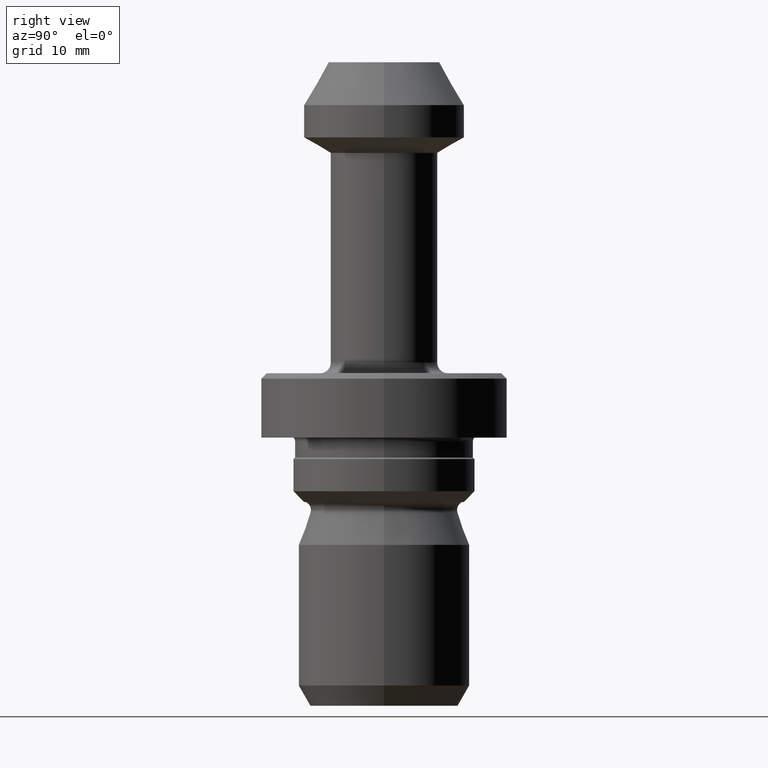
[diagram: clean part render]
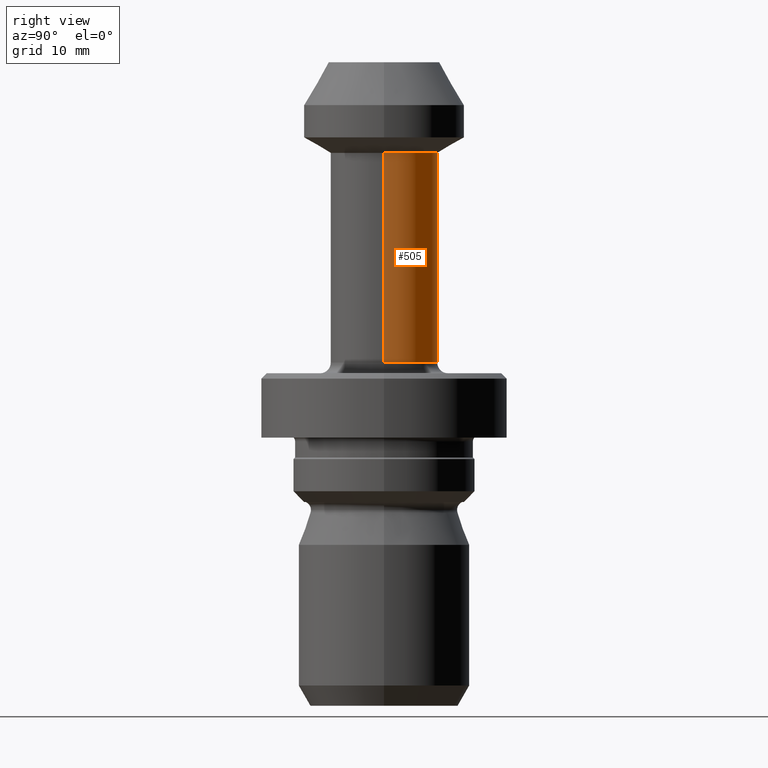
[diagram: same view with one face highlighted and labeled with its STEP entity id]
A machine part, right view. The second image highlights one B-rep face of the part: STEP entity #505.
In plain terms, the highlighted cylindrical surface (partial cylindrical patch) has radius 5 mm, axis along (-0, -0, 1).
Its self-contained STEP definition (entity closure, byte-faithful):
#25 = ORIENTED_EDGE ( 'NONE', *, *, #81, .F. ) ;
#38 = ORIENTED_EDGE ( 'NONE', *, *, #730, .T. ) ;
#41 = VERTEX_POINT ( 'NONE', #1076 ) ;
#81 = EDGE_CURVE ( 'NONE', #358, #41, #656, .T. ) ;
#109 = VECTOR ( 'NONE', #711, 1000.000000000000000 ) ;
#131 = DIRECTION ( 'NONE',  ( 1.000000000000000000, 0.0000000000000000000, 0.0000000000000000000 ) ) ;
#132 = VERTEX_POINT ( 'NONE', #467 ) ;
#147 = CARTESIAN_POINT ( 'NONE',  ( 0.0000000000000000000, 0.0000000000000000000, -8.443375672974056600 ) ) ;
#161 = CARTESIAN_POINT ( 'NONE',  ( -4.999999999999999100, 6.123233995736765300E-016, 0.0000000000000000000 ) ) ;
#216 = CYLINDRICAL_SURFACE ( 'NONE', #622, 4.999999999999999100 ) ;
#219 = DIRECTION ( 'NONE',  ( 1.000000000000000000, 0.0000000000000000000, 0.0000000000000000000 ) ) ;
#245 = CARTESIAN_POINT ( 'NONE',  ( 4.999999999999999100, 0.0000000000000000000, -28.00000000000000400 ) ) ;
#248 = FACE_OUTER_BOUND ( 'NONE', #781, .T. ) ;
#260 = DIRECTION ( 'NONE',  ( -0.0000000000000000000, -0.0000000000000000000, 1.000000000000000000 ) ) ;
#262 = ORIENTED_EDGE ( 'NONE', *, *, #519, .T. ) ;
#330 = DIRECTION ( 'NONE',  ( -0.0000000000000000000, -0.0000000000000000000, 1.000000000000000000 ) ) ;
#350 = EDGE_CURVE ( 'NONE', #41, #132, #431, .T. ) ;
#358 = VERTEX_POINT ( 'NONE', #245 ) ;
#392 = CARTESIAN_POINT ( 'NONE',  ( 4.999999999999999100, 0.0000000000000000000, 0.0000000000000000000 ) ) ;
#431 = CIRCLE ( 'NONE', #1113, 5.000000000000000000 ) ;
#452 = LINE ( 'NONE', #161, #696 ) ;
#467 = CARTESIAN_POINT ( 'NONE',  ( -5.000000000000000000, 6.123233995736766300E-016, -8.443375672974056600 ) ) ;
#483 = CARTESIAN_POINT ( 'NONE',  ( -4.999999999999999100, 6.735557395310442000E-016, -28.00000000000000400 ) ) ;
#505 = ADVANCED_FACE ( 'NONE', ( #248 ), #216, .T. ) ;
#519 = EDGE_CURVE ( 'NONE', #766, #132, #452, .T. ) ;
#548 = AXIS2_PLACEMENT_3D ( 'NONE', #723, #554, #219 ) ;
#554 = DIRECTION ( 'NONE',  ( -0.0000000000000000000, -0.0000000000000000000, 1.000000000000000000 ) ) ;
#622 = AXIS2_PLACEMENT_3D ( 'NONE', #658, #330, #131 ) ;
#656 = LINE ( 'NONE', #392, #109 ) ;
#658 = CARTESIAN_POINT ( 'NONE',  ( 0.0000000000000000000, 0.0000000000000000000, 0.0000000000000000000 ) ) ;
#696 = VECTOR ( 'NONE', #260, 1000.000000000000000 ) ;
#711 = DIRECTION ( 'NONE',  ( -0.0000000000000000000, -0.0000000000000000000, 1.000000000000000000 ) ) ;
#723 = CARTESIAN_POINT ( 'NONE',  ( 0.0000000000000000000, 0.0000000000000000000, -28.00000000000000400 ) ) ;
#730 = EDGE_CURVE ( 'NONE', #358, #766, #951, .T. ) ;
#766 = VERTEX_POINT ( 'NONE', #483 ) ;
#781 = EDGE_LOOP ( 'NONE', ( #38, #262, #930, #25 ) ) ;
#930 = ORIENTED_EDGE ( 'NONE', *, *, #350, .F. ) ;
#940 = DIRECTION ( 'NONE',  ( 1.000000000000000000, 0.0000000000000000000, 0.0000000000000000000 ) ) ;
#951 = CIRCLE ( 'NONE', #548, 4.999999999999999100 ) ;
#1023 = DIRECTION ( 'NONE',  ( -0.0000000000000000000, -0.0000000000000000000, 1.000000000000000000 ) ) ;
#1076 = CARTESIAN_POINT ( 'NONE',  ( 5.000000000000000000, 0.0000000000000000000, -8.443375672974056600 ) ) ;
#1113 = AXIS2_PLACEMENT_3D ( 'NONE', #147, #1023, #940 ) ;